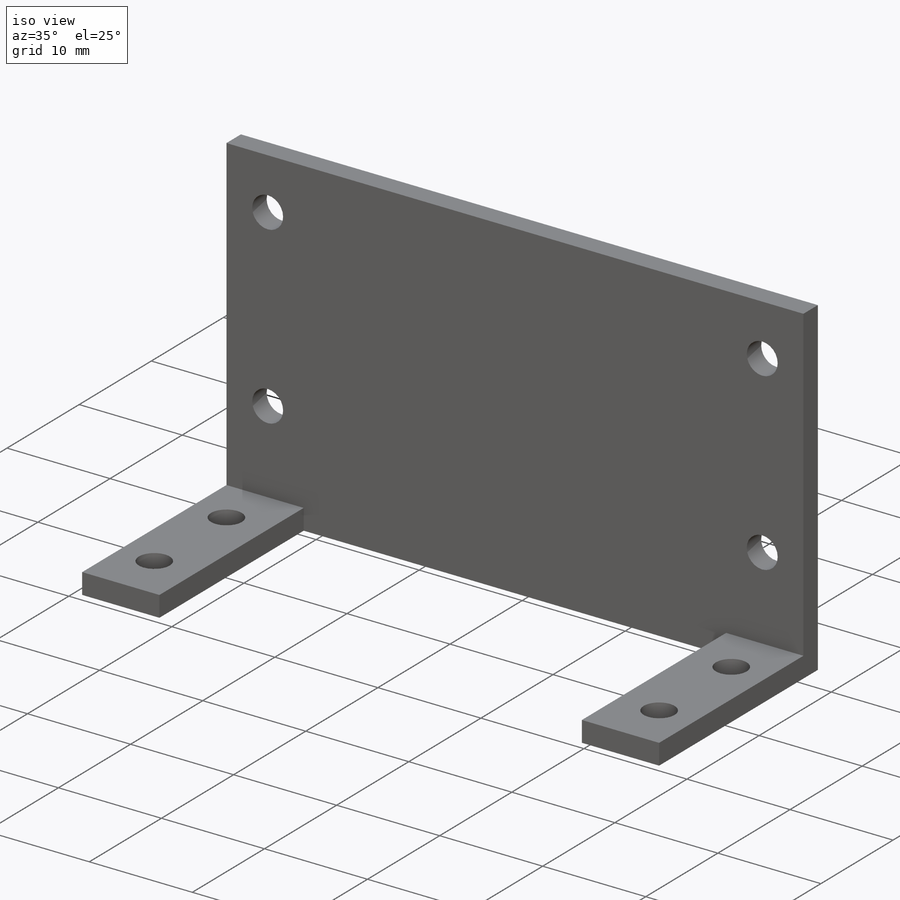
[diagram: iso view]
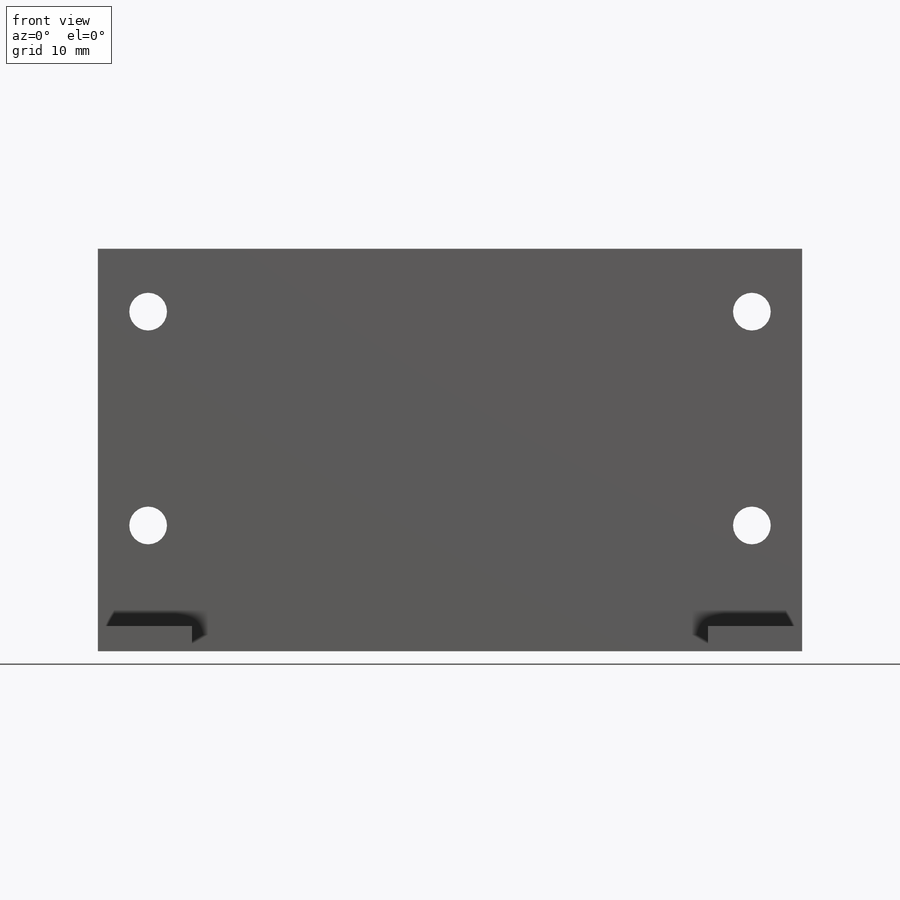
[diagram: front view]
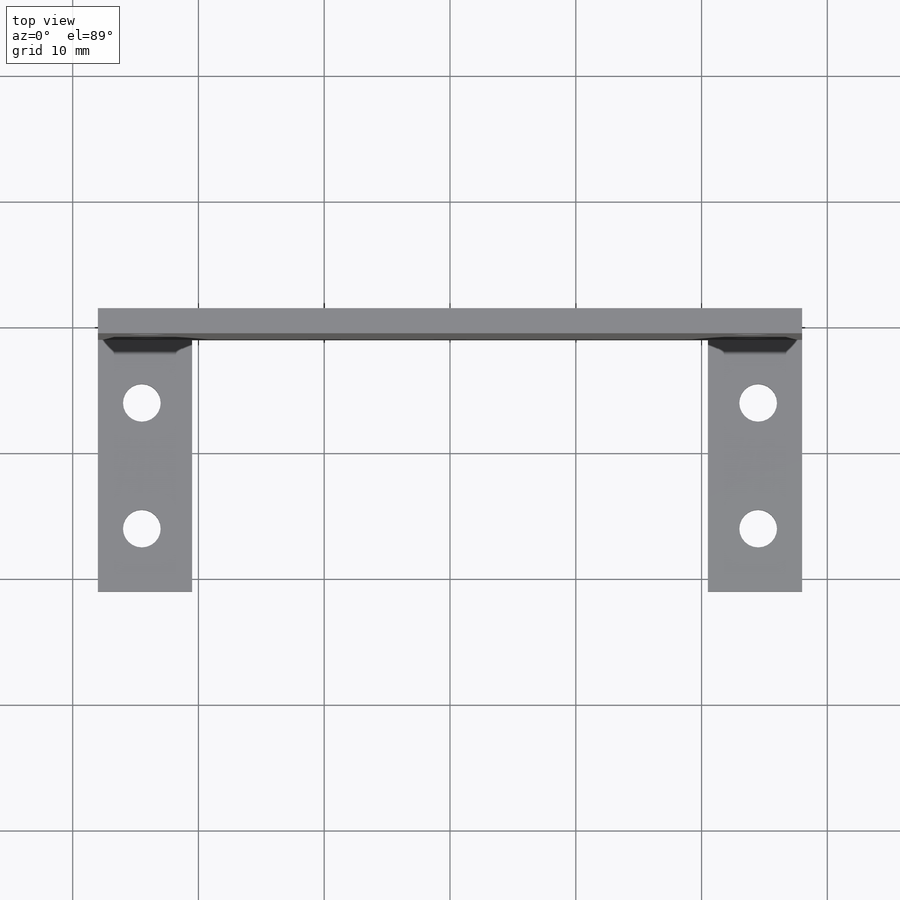
[diagram: top view]
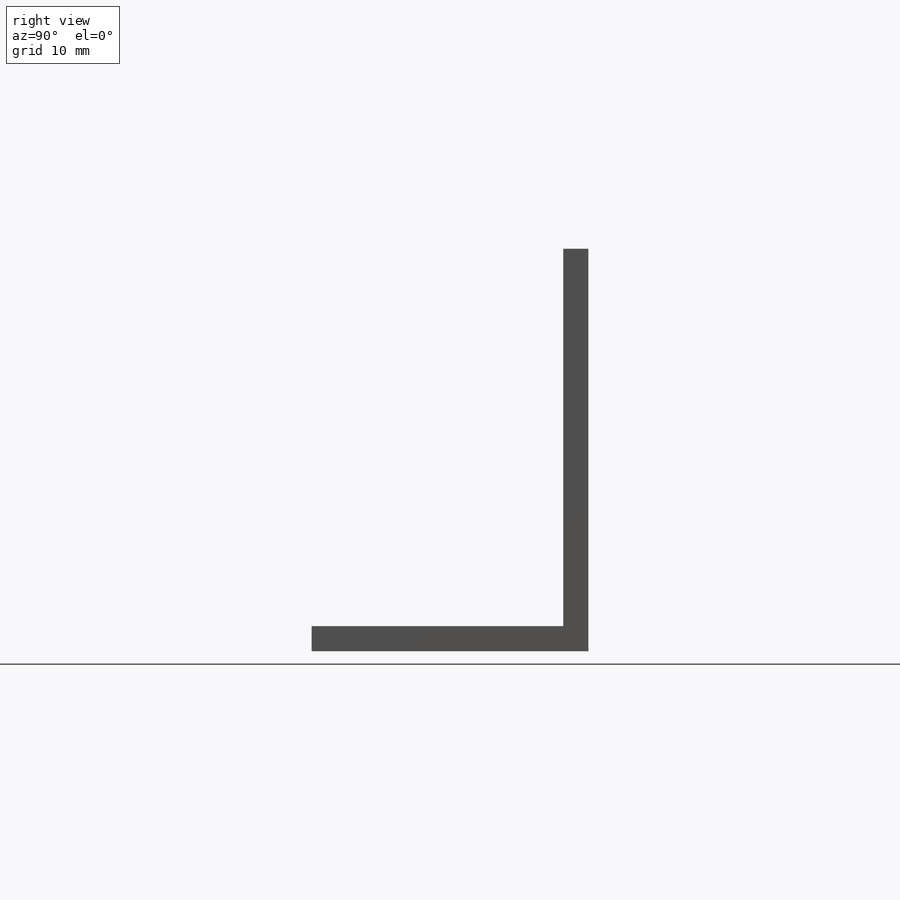
[diagram: right view]
SOLIDWORKS PART (.sldprt)
format: sldprt  version: not decoded by parser v0  size: 222,720 bytes
history: native  units: mm
features: sketch x5, plane x3, cut_extrude x3, extrude x2, material x1 (+9 scaffold rows collapsed)
feature tree (23):
  scaffold x9  (default folders/planes/origin — collapsed)
  material  "Matériau <non spécifié>"
  plane  "Plan de face"
  plane  "Plan de dessus"
  plane  "Plan de droite"
  sketch  "Esquisse1"  dims[D1=56.0mm D2=22.0mm D3=11.0mm D4=28.0mm]
  extrude  "Boss.-Extru.1"  Depth=2mm
  sketch  "Esquisse2"  dims[D1=2.0mm]
  extrude  "Boss.-Extru.2"  Depth=30mm
  sketch  "Esquisse3"  dims[c1.D1=0.0mm c1.D2=5.0mm c1.D3=5.0mm c1.D4=20.0mm c2.D2=41.0mm c2.D3=20.5mm]
  cut_extrude  "Enlèv. mat.-Extru.1"  Depth=20mm
  sketch  "Esquisse5"  dims[D1=3.0mm D2=3.0mm D3=3.0mm D4=3.0mm D5=49.0mm D6=49.0mm D7=10.0mm D8=10.0mm D9=4.0mm D10=4.0mm D11=5.0mm D12=5.0mm D13=5.0mm]
  cut_extrude  "Enlèv. mat.-Extru.2"  Depth=20mm
  sketch  "Esquisse6"  dims[D1=3.0mm D2=3.0mm D3=3.0mm D4=3.0mm D5=4.0mm D6=4.0mm D7=4.0mm D8=4.0mm D9=5.0mm D10=5.0mm D11=10.0mm D12=10.0mm]
  cut_extrude  "Enlèv. mat.-Extru.3"  Depth=20mm
decode coverage: 10 of 10 modeling features carry decoded parameters
note: suppression state not decoded; provenance and decode notes live in map.json
